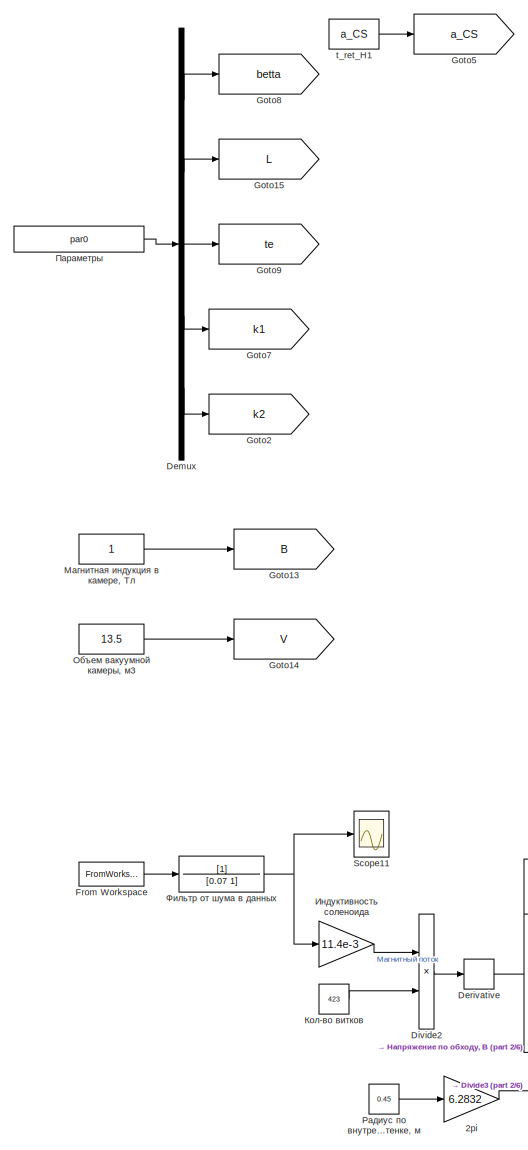
[diagram: root canvas - part 1/6, top left region]
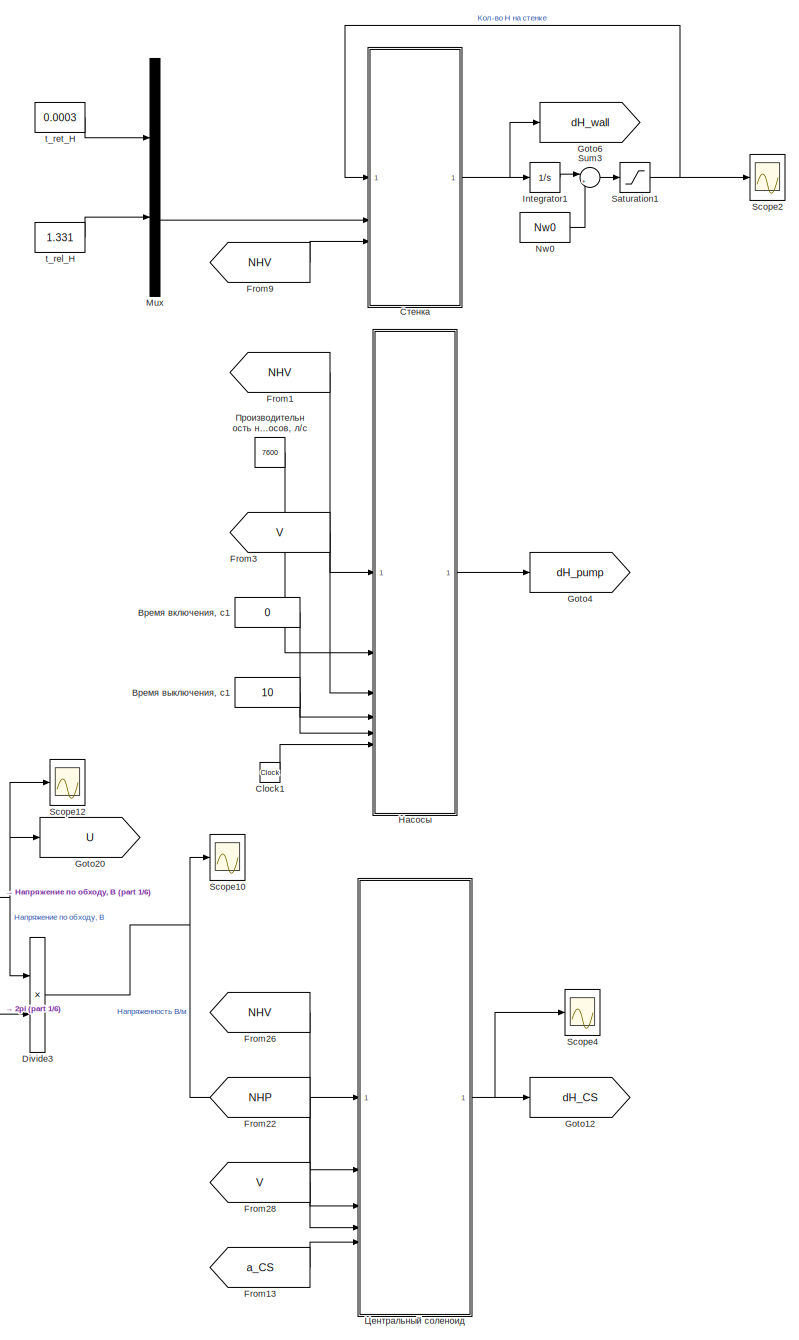
[diagram: root canvas - part 2/6, middle left region]
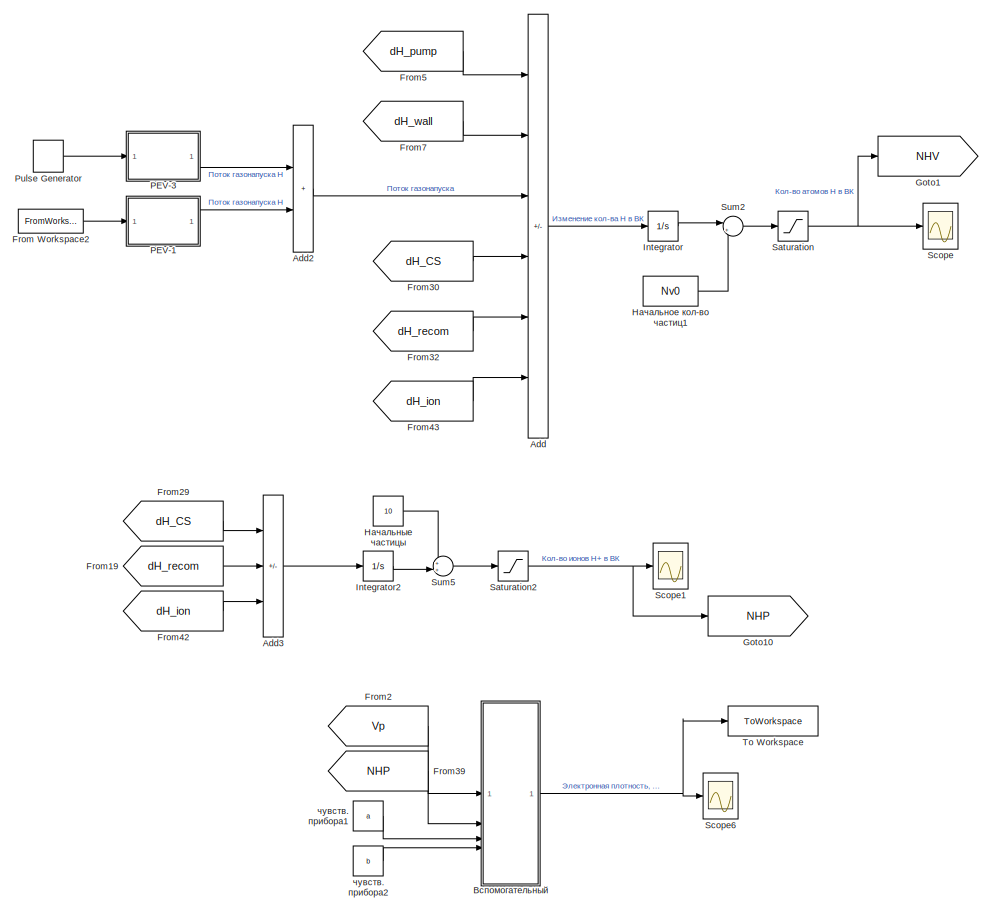
[diagram: root canvas - part 3/6, top right region]
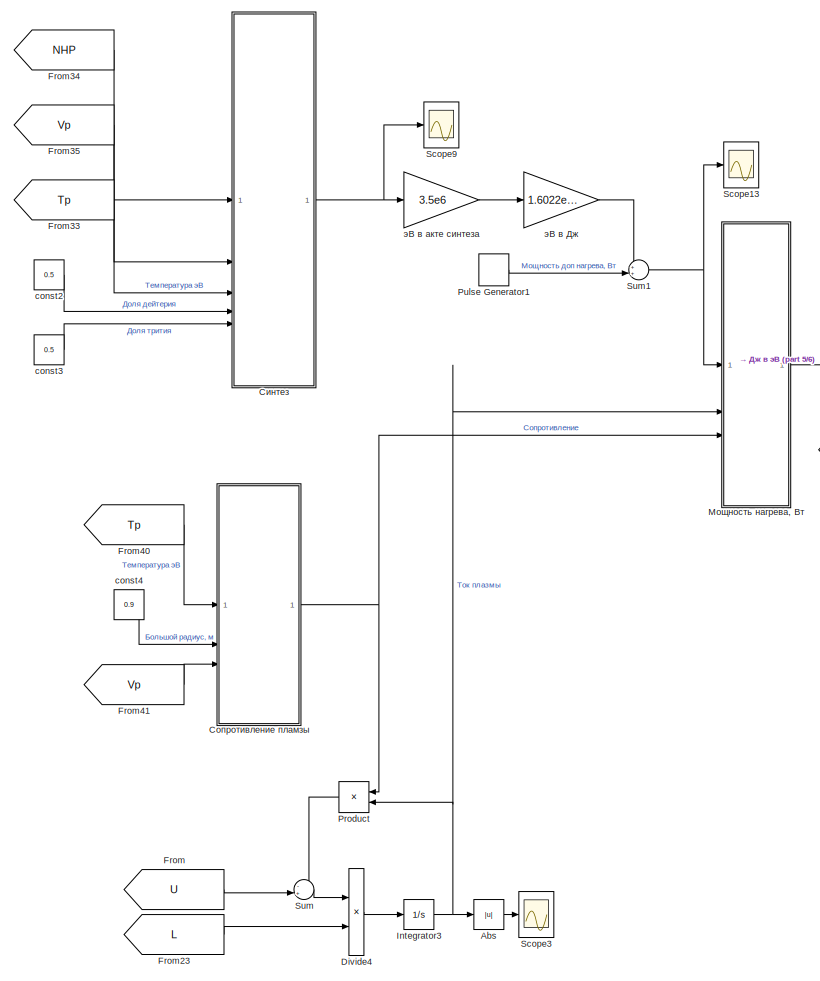
[diagram: root canvas - part 4/6, bottom center region]
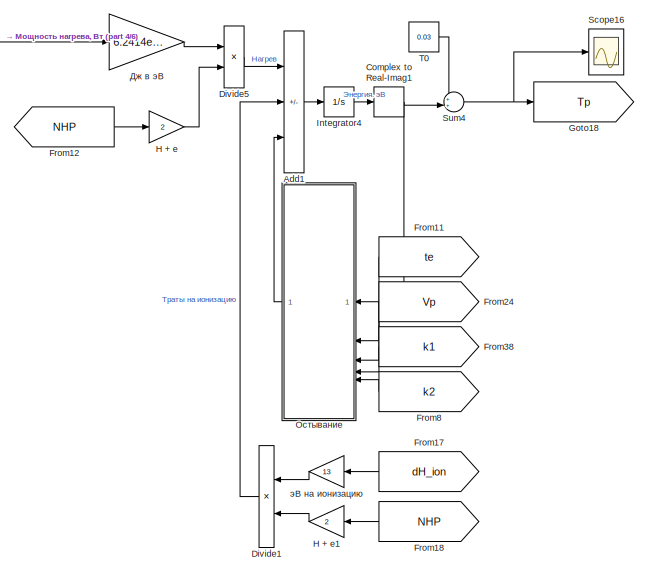
[diagram: root canvas - part 5/6, bottom right region]
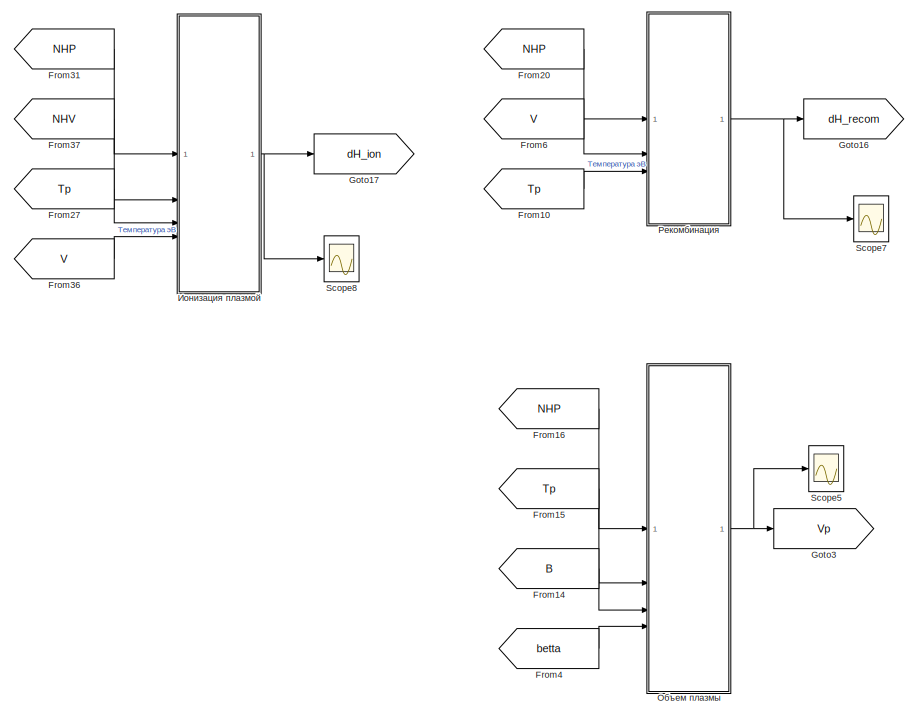
[diagram: root canvas - part 6/6, bottom left region]
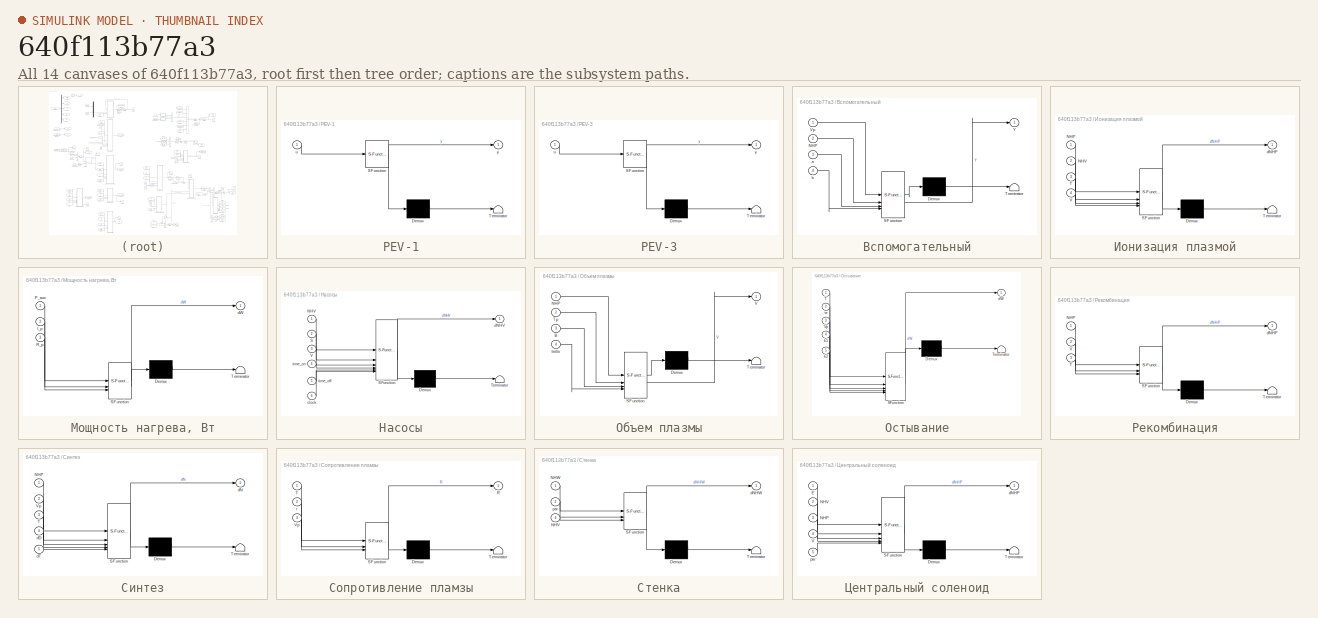
[diagram: thumbnail index - all 14 canvases of the model, root first then tree order]
MODEL slx_640f113b77a3
KIND model
CONFIG AbsTol = auto
CONFIG EnableMultiTasking = off
CONFIG FixedStep = 1e-4
CONFIG MaxStep = auto
CONFIG MinStep = auto
CONFIG RelTol = 1e-6
CONFIG SampleTimeConstraint = Unconstrained
CONFIG SolverName = daessc
CONFIG StartTime = 0.0
CONFIG StopTime = 6
WORKSPACE source: mxarray member
WORKSPACE N_p0 = 5
WORKSPACE N_v0 = 0
WORKSPACE N_w0 = 0
WORKSPACE t_ion = 0
WORKSPACE t_p = 12
WORKSPACE t_pump = 32
WORKSPACE t_release = 5
WORKSPACE t_retention = 2
BLOCK [Gain] 2pi
  Gain = 6.2832
BLOCK [Abs] Abs
  SaturateOnIntegerOverflow = off
BLOCK [Sum] Add
  IconShape = rectangular
  Inputs = --+-+-
BLOCK [Sum] Add1
  IconShape = rectangular
  Inputs = +--
BLOCK [Sum] Add2
  IconShape = rectangular
BLOCK [Sum] Add3
  IconShape = rectangular
  Inputs = +-+
BLOCK [Clock] Clock1
BLOCK [ComplexToRealImag] Complex to Real-Imag1
  Output = Real
BLOCK [Demux] Demux
  Outputs = 5
BLOCK [Derivative] Derivative
BLOCK [Product] Divide1
  Inputs = */
BLOCK [Product] Divide2
  Inputs = */
BLOCK [Product] Divide3
  Inputs = */
BLOCK [Product] Divide4
  Inputs = */
BLOCK [Product] Divide5
  Inputs = */
BLOCK [From] From
  GotoTag = U
BLOCK [FromWorkspace] From Workspace
  OutputAfterFinalValue = Holding final value
  VariableName = I_CS
BLOCK [FromWorkspace] From Workspace2
  OutputAfterFinalValue = Holding final value
  VariableName = gas
BLOCK [From] From1
  GotoTag = NHV
BLOCK [From] From10
  GotoTag = Tp
BLOCK [From] From11
  GotoTag = te
BLOCK [From] From12
  GotoTag = NHP
BLOCK [From] From13
  GotoTag = a_CS
BLOCK [From] From14
  GotoTag = B
BLOCK [From] From15
  GotoTag = Tp
BLOCK [From] From16
  GotoTag = NHP
BLOCK [From] From17
  GotoTag = dH_ion
BLOCK [From] From18
  GotoTag = NHP
BLOCK [From] From19
  GotoTag = dH_recom
BLOCK [From] From2
  GotoTag = Vp
BLOCK [From] From20
  GotoTag = NHP
BLOCK [From] From22
  GotoTag = NHP
BLOCK [From] From23
  GotoTag = L
BLOCK [From] From24
  GotoTag = Vp
BLOCK [From] From26
  GotoTag = NHV
BLOCK [From] From27
  GotoTag = Tp
BLOCK [From] From28
  GotoTag = V
BLOCK [From] From29
  GotoTag = dH_CS
BLOCK [From] From3
  GotoTag = V
BLOCK [From] From30
  GotoTag = dH_CS
BLOCK [From] From31
  GotoTag = NHP
BLOCK [From] From32
  GotoTag = dH_recom
BLOCK [From] From33
  GotoTag = Tp
BLOCK [From] From34
  GotoTag = NHP
BLOCK [From] From35
  GotoTag = Vp
BLOCK [From] From36
  GotoTag = V
BLOCK [From] From37
  GotoTag = NHV
BLOCK [From] From38
  GotoTag = k1
BLOCK [From] From39
  GotoTag = NHP
BLOCK [From] From4
  GotoTag = betta
BLOCK [From] From40
  GotoTag = Tp
BLOCK [From] From41
  GotoTag = Vp
BLOCK [From] From42
  GotoTag = dH_ion
BLOCK [From] From43
  GotoTag = dH_ion
BLOCK [From] From5
  GotoTag = dH_pump
BLOCK [From] From6
  GotoTag = V
BLOCK [From] From7
  GotoTag = dH_wall
BLOCK [From] From8
  GotoTag = k2
BLOCK [From] From9
  GotoTag = NHV
BLOCK [Goto] Goto1
  GotoTag = NHV
BLOCK [Goto] Goto10
  GotoTag = NHP
BLOCK [Goto] Goto12
  GotoTag = dH_CS
BLOCK [Goto] Goto13
  GotoTag = B
BLOCK [Goto] Goto14
  GotoTag = V
BLOCK [Goto] Goto15
  GotoTag = L
BLOCK [Goto] Goto16
  GotoTag = dH_recom
BLOCK [Goto] Goto17
  GotoTag = dH_ion
BLOCK [Goto] Goto18
  GotoTag = Tp
BLOCK [Goto] Goto2
  GotoTag = k2
BLOCK [Goto] Goto20
  GotoTag = U
BLOCK [Goto] Goto3
  GotoTag = Vp
BLOCK [Goto] Goto4
  GotoTag = dH_pump
BLOCK [Goto] Goto5
  GotoTag = a_CS
BLOCK [Goto] Goto6
  GotoTag = dH_wall
BLOCK [Goto] Goto7
  GotoTag = k1
BLOCK [Goto] Goto8
  GotoTag = betta
BLOCK [Goto] Goto9
  GotoTag = te
BLOCK [Gain] H + e
  Gain = 2
BLOCK [Gain] H + e1
  Gain = 2
BLOCK [Integrator] Integrator
  LowerSaturationLimit = 0
BLOCK [Integrator] Integrator1
  LowerSaturationLimit = 0
BLOCK [Integrator] Integrator2
  LimitOutput = on
  LowerSaturationLimit = 0
BLOCK [Integrator] Integrator3
BLOCK [Integrator] Integrator4
  LimitOutput = on
  LowerSaturationLimit = 0
BLOCK [Mux] Mux
  DisplayOption = bar
  Inputs = 2
BLOCK [Constant] Nw0
  Value = Nw0
BLOCK [SubSystem] PEV-1
  ErrorFcn = Stateflow.Translate.translate
  PermitHierarchicalResolution = ExplicitOnly
  SFBlockType = MATLAB Function
  TreatAsAtomicUnit = on
BLOCK [Demux] PEV-1/ Demux 
  Outputs = 1
BLOCK [S-Function] PEV-1/ SFunction 
  EnableBusSupport = on
  FunctionName = sf_sfun
  PortCounts = [1 2]
  SFcnIsStateOwnerBlock = off
  SFunctionDeploymentMode = off
  Tag = Stateflow S-Function 3
BLOCK [Terminator] PEV-1/ Terminator 
BLOCK [Inport] PEV-1/u
BLOCK [Outport] PEV-1/y
BLOCK [SubSystem] PEV-3
  ErrorFcn = Stateflow.Translate.translate
  PermitHierarchicalResolution = ExplicitOnly
  SFBlockType = MATLAB Function
  TreatAsAtomicUnit = on
BLOCK [Demux] PEV-3/ Demux 
  Outputs = 1
BLOCK [S-Function] PEV-3/ SFunction 
  EnableBusSupport = on
  FunctionName = sf_sfun
  PortCounts = [1 2]
  SFcnIsStateOwnerBlock = off
  SFunctionDeploymentMode = off
  Tag = Stateflow S-Function 4
BLOCK [Terminator] PEV-3/ Terminator 
BLOCK [Inport] PEV-3/u
BLOCK [Outport] PEV-3/y
BLOCK [Product] Product
BLOCK [DiscretePulseGenerator] Pulse Generator
  Amplitude = 35.8
  Period = 1
  PulseType = Time based
  PulseWidth = 50
BLOCK [DiscretePulseGenerator] Pulse Generator1
  Amplitude = 8e6
  Period = 100
  PhaseDelay = 2.25
  PulseType = Time based
  PulseWidth = 0.15
BLOCK [Saturate] Saturation
  LowerLimit = 0
  UpperLimit = 1e30
BLOCK [Saturate] Saturation1
  LowerLimit = 0
  UpperLimit = 1e30
BLOCK [Saturate] Saturation2
  LowerLimit = 0
  UpperLimit = 1e30
BLOCK [Scope] Scope
  Floating = off
  NumInputPorts = 1
  ScopeSpecificationString = Simulink.scopes.TimeScopeBlockCfg('CurrentConfiguration', extmgr.ConfigurationSet(extmgr.Configuration('Core','General UI',true,'FigureColor',[1 1 1]),extmgr.Configuration('Core','Source UI',true),extmgr.Configuration('Sources','WiredSimulink',true,'DataLoggingVariableName','ScopeData1'),extmgr.Configuration('Visuals','Time Domain',true,'SerializedDisplays',{struct('MinYLimReal','16621659392793669...<+1775ch>
BLOCK [Scope] Scope1
  Floating = off
  NumInputPorts = 1
  ScopeSpecificationString = Simulink.scopes.TimeScopeBlockCfg('CurrentConfiguration', extmgr.ConfigurationSet(extmgr.Configuration('Core','General UI',true,'FigureColor',[1 1 1]),extmgr.Configuration('Core','Source UI',true),extmgr.Configuration('Sources','WiredSimulink',true,'DataLoggingVariableName','ScopeData1'),extmgr.Configuration('Visuals','Time Domain',true,'SerializedDisplays',{struct('MinYLimReal','-2246492687127468...<+1772ch>
BLOCK [Scope] Scope10
  Floating = off
  NumInputPorts = 1
  ScopeSpecificationString = Simulink.scopes.TimeScopeBlockCfg('CurrentConfiguration', extmgr.ConfigurationSet(extmgr.Configuration('Core','General UI',true,'FigureColor',[1 1 1]),extmgr.Configuration('Core','Source UI',true),extmgr.Configuration('Sources','WiredSimulink',true,'DataLoggingVariableName','ScopeData1'),extmgr.Configuration('Visuals','Time Domain',true,'SerializedDisplays',{struct('MinYLimReal','-0.85762','MaxYLi...<+1622ch>
BLOCK [Scope] Scope11
  Floating = off
  NumInputPorts = 1
  ScopeSpecificationString = Simulink.scopes.TimeScopeBlockCfg('CurrentConfiguration', extmgr.ConfigurationSet(extmgr.Configuration('Core','General UI',true,'FigureColor',[1 1 1]),extmgr.Configuration('Core','Source UI',true),extmgr.Configuration('Sources','WiredSimulink',true,'DataLoggingVariableName','ScopeData2'),extmgr.Configuration('Visuals','Time Domain',true,'SerializedDisplays',{struct('MinYLimReal','-15687.03852','Ma...<+1658ch>
BLOCK [Scope] Scope12
  Floating = off
  NumInputPorts = 1
  ScopeSpecificationString = Simulink.scopes.TimeScopeBlockCfg('CurrentConfiguration', extmgr.ConfigurationSet(extmgr.Configuration('Core','General UI',true,'FigureColor',[1 1 1]),extmgr.Configuration('Core','Source UI',true),extmgr.Configuration('Sources','WiredSimulink',true,'DataLoggingVariableName','ScopeData1'),extmgr.Configuration('Visuals','Time Domain',true,'SerializedDisplays',{struct('MinYLimReal','-2.42488','MaxYLi...<+1628ch>
BLOCK [Scope] Scope13
  Floating = off
  NumInputPorts = 1
  ScopeSpecificationString = Simulink.scopes.TimeScopeBlockCfg('CurrentConfiguration', extmgr.ConfigurationSet(extmgr.Configuration('Core','General UI',true,'FigureColor',[1 1 1]),extmgr.Configuration('Core','Source UI',true),extmgr.Configuration('Sources','WiredSimulink',true,'DataLoggingVariableName','ScopeData1'),extmgr.Configuration('Visuals','Time Domain',true,'SerializedDisplays',{struct('MinYLimReal','-1000000.00001','...<+1655ch>
BLOCK [Scope] Scope16
  Floating = off
  NumInputPorts = 1
  ScopeSpecificationString = Simulink.scopes.TimeScopeBlockCfg('CurrentConfiguration', extmgr.ConfigurationSet(extmgr.Configuration('Core','General UI',true,'FigureColor',[1 1 1]),extmgr.Configuration('Core','Source UI',true),extmgr.Configuration('Sources','WiredSimulink',true,'DataLoggingVariableName','ScopeData2'),extmgr.Configuration('Visuals','Time Domain',true,'SerializedDisplays',{struct('MinYLimReal','-84523.44815','Ma...<+1670ch>
BLOCK [Scope] Scope2
  Floating = off
  NumInputPorts = 1
  ScopeSpecificationString = Simulink.scopes.TimeScopeBlockCfg('CurrentConfiguration', extmgr.ConfigurationSet(extmgr.Configuration('Core','General UI',true,'FigureColor',[1 1 1]),extmgr.Configuration('Core','Source UI',true),extmgr.Configuration('Sources','WiredSimulink',true,'DataLoggingVariableName','ScopeData1'),extmgr.Configuration('Visuals','Time Domain',true,'SerializedDisplays',{struct('MinYLimReal','75300933943947853...<+1797ch>
BLOCK [Scope] Scope3
  Floating = off
  NumInputPorts = 1
  ScopeSpecificationString = Simulink.scopes.TimeScopeBlockCfg('CurrentConfiguration', extmgr.ConfigurationSet(extmgr.Configuration('Core','General UI',true,'FigureColor',[1 1 1]),extmgr.Configuration('Core','Source UI',true),extmgr.Configuration('Sources','WiredSimulink',true,'DataLoggingVariableName','ScopeData1'),extmgr.Configuration('Visuals','Time Domain',true,'SerializedDisplays',{struct('MinYLimReal','-1587461524.26099...<+1682ch>
BLOCK [Scope] Scope4
  Floating = off
  NumInputPorts = 1
  ScopeSpecificationString = Simulink.scopes.TimeScopeBlockCfg('CurrentConfiguration', extmgr.ConfigurationSet(extmgr.Configuration('Core','General UI',true,'FigureColor',[1 1 1]),extmgr.Configuration('Core','Source UI',true),extmgr.Configuration('Sources','WiredSimulink',true,'DataLoggingVariableName','ScopeData1'),extmgr.Configuration('Visuals','Time Domain',true,'SerializedDisplays',{struct('MinYLimReal','-2168739559393113...<+1814ch>
BLOCK [Scope] Scope5
  Floating = off
  NumInputPorts = 1
  ScopeSpecificationString = Simulink.scopes.TimeScopeBlockCfg('CurrentConfiguration', extmgr.ConfigurationSet(extmgr.Configuration('Core','General UI',true,'FigureColor',[1 1 1]),extmgr.Configuration('Core','Source UI',true),extmgr.Configuration('Sources','WiredSimulink',true,'DataLoggingVariableName','ScopeData2'),extmgr.Configuration('Visuals','Time Domain',true,'SerializedDisplays',{struct('MinYLimReal','-1.19552','MaxYLi...<+1621ch>
BLOCK [Scope] Scope6
  Floating = off
  NumInputPorts = 1
  ScopeSpecificationString = Simulink.scopes.TimeScopeBlockCfg('CurrentConfiguration', extmgr.ConfigurationSet(extmgr.Configuration('Core','General UI',true,'FigureColor',[1 1 1]),extmgr.Configuration('Core','Source UI',true),extmgr.Configuration('Sources','WiredSimulink',true,'DataLoggingVariableName','ScopeData2'),extmgr.Configuration('Visuals','Time Domain',true,'SerializedDisplays',{struct('MinYLimReal','-1884733013792859...<+1777ch>
BLOCK [Scope] Scope7
  Floating = off
  NumInputPorts = 1
  ScopeSpecificationString = Simulink.scopes.TimeScopeBlockCfg('CurrentConfiguration', extmgr.ConfigurationSet(extmgr.Configuration('Core','General UI',true,'FigureColor',[1 1 1]),extmgr.Configuration('Core','Source UI',true),extmgr.Configuration('Sources','WiredSimulink',true,'DataLoggingVariableName','ScopeData1'),extmgr.Configuration('Visuals','Time Domain',true,'SerializedDisplays',{struct('MinYLimReal','-1286645898170381...<+1786ch>
BLOCK [Scope] Scope8
  Floating = off
  NumInputPorts = 1
  ScopeSpecificationString = Simulink.scopes.TimeScopeBlockCfg('CurrentConfiguration', extmgr.ConfigurationSet(extmgr.Configuration('Core','General UI',true,'FigureColor',[1 1 1]),extmgr.Configuration('Core','Source UI',true),extmgr.Configuration('Sources','WiredSimulink',true,'DataLoggingVariableName','ScopeData2'),extmgr.Configuration('Visuals','Time Domain',true,'SerializedDisplays',{struct('MinYLimReal','-2886698763500426...<+1803ch>
BLOCK [Scope] Scope9
  Floating = off
  NumInputPorts = 1
  ScopeSpecificationString = Simulink.scopes.TimeScopeBlockCfg('CurrentConfiguration', extmgr.ConfigurationSet(extmgr.Configuration('Core','General UI',true,'FigureColor',[1 1 1]),extmgr.Configuration('Core','Source UI',true),extmgr.Configuration('Sources','WiredSimulink',true,'DataLoggingVariableName','ScopeData3'),extmgr.Configuration('Visuals','Time Domain',true,'SerializedDisplays',{struct('MinYLimReal','-0.00000009','Max...<+1635ch>
BLOCK [Sum] Sum
  Inputs = -+|
BLOCK [Sum] Sum1
  Inputs = ++|
BLOCK [Sum] Sum2
  Inputs = |++
BLOCK [Sum] Sum3
  Inputs = |++
BLOCK [Sum] Sum4
  Inputs = ++|
BLOCK [Sum] Sum5
  Inputs = ++|
BLOCK [Constant] T0
  Value = 0.03
BLOCK [ToWorkspace] To Workspace
  FixptAsFi = on
  MaxDataPoints = inf
  SampleTime = 0.001
  SaveFormat = Timeseries
  VariableName = nP_model
BLOCK [Constant] const2
  Value = 0.5
BLOCK [Constant] const3
  Value = 0.5
BLOCK [Constant] const4
  Value = 0.9
BLOCK [Constant] t_rel_H
  Value = 1.331
BLOCK [Constant] t_ret_H
  Value = 0.0003
BLOCK [Constant] t_ret_H1
  Value = a_CS
BLOCK [Constant] Время включения, с1
  Value = 0
BLOCK [Constant] Время выключения, с1
  Value = 10
BLOCK [SubSystem] Вспомогательный
  ErrorFcn = Stateflow.Translate.translate
  PermitHierarchicalResolution = ExplicitOnly
  SFBlockType = MATLAB Function
  TreatAsAtomicUnit = on
BLOCK [Demux] Вспомогательный/ Demux 
  Outputs = 1
BLOCK [S-Function] Вспомогательный/ SFunction 
  EnableBusSupport = on
  FunctionName = sf_sfun
  PortCounts = [4 2]
  SFcnIsStateOwnerBlock = off
  SFunctionDeploymentMode = off
  Tag = Stateflow S-Function 11
BLOCK [Terminator] Вспомогательный/ Terminator 
BLOCK [Inport] Вспомогательный/NHP
  Port = 2
BLOCK [Inport] Вспомогательный/Vp
BLOCK [Outport] Вспомогательный/Y
BLOCK [Inport] Вспомогательный/a
  Port = 3
BLOCK [Inport] Вспомогательный/b
  Port = 4
BLOCK [Gain] Дж в эВ
  Gain = 6.2414e18
BLOCK [Gain] Индуктивность соленоида
  Gain = 11.4e-3
BLOCK [SubSystem] Ионизация плазмой
  ErrorFcn = Stateflow.Translate.translate
  PermitHierarchicalResolution = ExplicitOnly
  SFBlockType = MATLAB Function
  TreatAsAtomicUnit = on
BLOCK [Demux] Ионизация плазмой/ Demux 
  Outputs = 1
BLOCK [S-Function] Ионизация плазмой/ SFunction 
  EnableBusSupport = on
  FunctionName = sf_sfun
  PortCounts = [4 2]
  SFcnIsStateOwnerBlock = off
  SFunctionDeploymentMode = off
  Tag = Stateflow S-Function 13
BLOCK [Terminator] Ионизация плазмой/ Terminator 
BLOCK [Inport] Ионизация плазмой/NHP
BLOCK [Inport] Ионизация плазмой/NHV
  Port = 2
BLOCK [Inport] Ионизация плазмой/T
  Port = 3
BLOCK [Inport] Ионизация плазмой/V
  Port = 4
BLOCK [Outport] Ионизация плазмой/dNHP
BLOCK [Constant] Кол-во витков
  Value = 423
BLOCK [Constant] Магнитная индукция в камере, Тл
BLOCK [SubSystem] Мощность нагрева, Вт
  ErrorFcn = Stateflow.Translate.translate
  PermitHierarchicalResolution = ExplicitOnly
  SFBlockType = MATLAB Function
  TreatAsAtomicUnit = on
BLOCK [Demux] Мощность нагрева, Вт/ Demux 
  Outputs = 1
BLOCK [S-Function] Мощность нагрева, Вт/ SFunction 
  EnableBusSupport = on
  FunctionName = sf_sfun
  PortCounts = [3 2]
  SFcnIsStateOwnerBlock = off
  SFunctionDeploymentMode = off
  Tag = Stateflow S-Function 10
BLOCK [Terminator] Мощность нагрева, Вт/ Terminator 
BLOCK [Inport] Мощность нагрева, Вт/I_p
  Port = 2
BLOCK [Inport] Мощность нагрева, Вт/P_aux
BLOCK [Inport] Мощность нагрева, Вт/R_p
  Port = 3
BLOCK [Outport] Мощность нагрева, Вт/dW
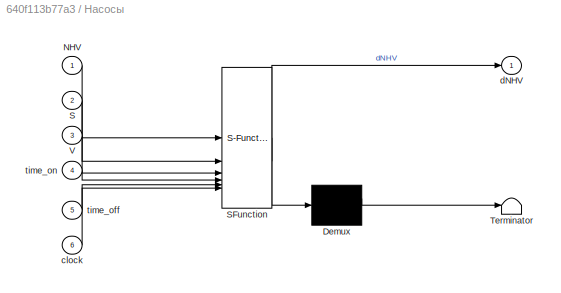
BLOCK [SubSystem] Насосы
  ErrorFcn = Stateflow.Translate.translate
  PermitHierarchicalResolution = ExplicitOnly
  SFBlockType = MATLAB Function
  TreatAsAtomicUnit = on
BLOCK [Demux] Насосы/ Demux 
  Outputs = 1
BLOCK [S-Function] Насосы/ SFunction 
  EnableBusSupport = on
  FunctionName = sf_sfun
  PortCounts = [6 2]
  SFcnIsStateOwnerBlock = off
  SFunctionDeploymentMode = off
  Tag = Stateflow S-Function 2
BLOCK [Terminator] Насосы/ Terminator 
BLOCK [Inport] Насосы/NHV
BLOCK [Inport] Насосы/S
  Port = 2
BLOCK [Inport] Насосы/V
  Port = 3
BLOCK [Inport] Насосы/clock
  Port = 6
BLOCK [Outport] Насосы/dNHV
BLOCK [Inport] Насосы/time_off
  Port = 5
BLOCK [Inport] Насосы/time_on
  Port = 4
BLOCK [Constant] Начальное кол-во частиц1
  Value = Nv0
BLOCK [Constant] Начальные частицы
  Value = 10
BLOCK [Constant] Объем вакуумной камеры, м3 
  Value = 13.5
BLOCK [SubSystem] Объем плазмы
  ErrorFcn = Stateflow.Translate.translate
  PermitHierarchicalResolution = ExplicitOnly
  SFBlockType = MATLAB Function
  TreatAsAtomicUnit = on
BLOCK [Demux] Объем плазмы/ Demux 
  Outputs = 1
BLOCK [S-Function] Объем плазмы/ SFunction 
  EnableBusSupport = on
  FunctionName = sf_sfun
  PortCounts = [4 2]
  SFcnIsStateOwnerBlock = off
  SFunctionDeploymentMode = off
  Tag = Stateflow S-Function 1
BLOCK [Terminator] Объем плазмы/ Terminator 
BLOCK [Inport] Объем плазмы/B
  Port = 3
BLOCK [Inport] Объем плазмы/NHP
BLOCK [Inport] Объем плазмы/Tp
  Port = 2
BLOCK [Outport] Объем плазмы/V
BLOCK [Inport] Объем плазмы/betta
  Port = 4
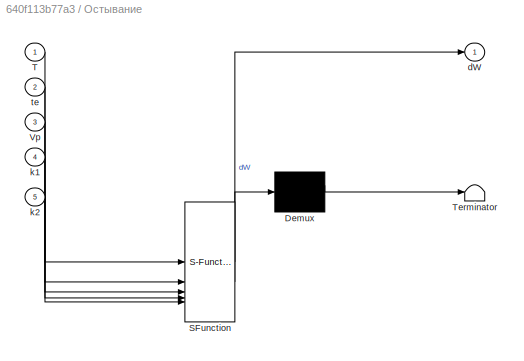
BLOCK [SubSystem] Остывание
  ErrorFcn = Stateflow.Translate.translate
  PermitHierarchicalResolution = ExplicitOnly
  SFBlockType = MATLAB Function
  TreatAsAtomicUnit = on
BLOCK [Demux] Остывание/ Demux 
  Outputs = 1
BLOCK [S-Function] Остывание/ SFunction 
  EnableBusSupport = on
  FunctionName = sf_sfun
  PortCounts = [5 2]
  SFcnIsStateOwnerBlock = off
  SFunctionDeploymentMode = off
  Tag = Stateflow S-Function 12
BLOCK [Terminator] Остывание/ Terminator 
BLOCK [Inport] Остывание/T
BLOCK [Inport] Остывание/Vp
  Port = 3
BLOCK [Outport] Остывание/dW
BLOCK [Inport] Остывание/k1
  Port = 4
BLOCK [Inport] Остывание/k2
  Port = 5
BLOCK [Inport] Остывание/te
  Port = 2
BLOCK [Constant] Параметры
  Value = par0
BLOCK [Constant] Производительность насосов, л//с
  Value = 7600
BLOCK [Constant] Радиус по внутренней стенке, м
  Value = 0.45
BLOCK [SubSystem] Рекомбинация
  ErrorFcn = Stateflow.Translate.translate
  PermitHierarchicalResolution = ExplicitOnly
  SFBlockType = MATLAB Function
  TreatAsAtomicUnit = on
BLOCK [Demux] Рекомбинация/ Demux 
  Outputs = 1
BLOCK [S-Function] Рекомбинация/ SFunction 
  EnableBusSupport = on
  FunctionName = sf_sfun
  PortCounts = [3 2]
  SFcnIsStateOwnerBlock = off
  SFunctionDeploymentMode = off
  Tag = Stateflow S-Function 6
BLOCK [Terminator] Рекомбинация/ Terminator 
BLOCK [Inport] Рекомбинация/NHP
BLOCK [Inport] Рекомбинация/T
  Port = 3
BLOCK [Inport] Рекомбинация/V
  Port = 2
BLOCK [Outport] Рекомбинация/dNHP
BLOCK [SubSystem] Синтез
  ErrorFcn = Stateflow.Translate.translate
  PermitHierarchicalResolution = ExplicitOnly
  SFBlockType = MATLAB Function
  TreatAsAtomicUnit = on
BLOCK [Demux] Синтез/ Demux 
  Outputs = 1
BLOCK [S-Function] Синтез/ SFunction 
  EnableBusSupport = on
  FunctionName = sf_sfun
  PortCounts = [5 2]
  SFcnIsStateOwnerBlock = off
  SFunctionDeploymentMode = off
  Tag = Stateflow S-Function 8
BLOCK [Terminator] Синтез/ Terminator 
BLOCK [Inport] Синтез/NHP
BLOCK [Inport] Синтез/T
  Port = 3
BLOCK [Inport] Синтез/Vp
  Port = 2
BLOCK [Inport] Синтез/dD
  Port = 4
BLOCK [Outport] Синтез/dN
BLOCK [Inport] Синтез/dT
  Port = 5
BLOCK [SubSystem] Сопротивление пламзы
  ErrorFcn = Stateflow.Translate.translate
  PermitHierarchicalResolution = ExplicitOnly
  SFBlockType = MATLAB Function
  TreatAsAtomicUnit = on
BLOCK [Demux] Сопротивление пламзы/ Demux 
  Outputs = 1
BLOCK [S-Function] Сопротивление пламзы/ SFunction 
  EnableBusSupport = on
  FunctionName = sf_sfun
  PortCounts = [3 2]
  SFcnIsStateOwnerBlock = off
  SFunctionDeploymentMode = off
  Tag = Stateflow S-Function 9
BLOCK [Terminator] Сопротивление пламзы/ Terminator 
BLOCK [Outport] Сопротивление пламзы/R
BLOCK [Inport] Сопротивление пламзы/T
BLOCK [Inport] Сопротивление пламзы/Vp
  Port = 3
BLOCK [Inport] Сопротивление пламзы/r
  Port = 2
BLOCK [SubSystem] Стенка
  ErrorFcn = Stateflow.Translate.translate
  PermitHierarchicalResolution = ExplicitOnly
  SFBlockType = MATLAB Function
  TreatAsAtomicUnit = on
BLOCK [Demux] Стенка/ Demux 
  Outputs = 1
BLOCK [S-Function] Стенка/ SFunction 
  EnableBusSupport = on
  FunctionName = sf_sfun
  PortCounts = [3 2]
  SFcnIsStateOwnerBlock = off
  SFunctionDeploymentMode = off
  Tag = Stateflow S-Function 5
BLOCK [Terminator] Стенка/ Terminator 
BLOCK [Inport] Стенка/NHV
  Port = 3
BLOCK [Inport] Стенка/NHW
BLOCK [Outport] Стенка/dNHW
BLOCK [Inport] Стенка/par
  Port = 2
BLOCK [TransferFcn] Фильтр от шума в данных
  Denominator = [0.07 1]
BLOCK [SubSystem] Центральный соленоид
  ErrorFcn = Stateflow.Translate.translate
  PermitHierarchicalResolution = ExplicitOnly
  SFBlockType = MATLAB Function
  TreatAsAtomicUnit = on
BLOCK [Demux] Центральный соленоид/ Demux 
  Outputs = 1
BLOCK [S-Function] Центральный соленоид/ SFunction 
  EnableBusSupport = on
  FunctionName = sf_sfun
  PortCounts = [5 2]
  SFcnIsStateOwnerBlock = off
  SFunctionDeploymentMode = off
  Tag = Stateflow S-Function 7
BLOCK [Terminator] Центральный соленоид/ Terminator 
BLOCK [Inport] Центральный соленоид/E
BLOCK [Inport] Центральный соленоид/NHP
  Port = 3
BLOCK [Inport] Центральный соленоид/NHV
  Port = 2
BLOCK [Inport] Центральный соленоид/V
  Port = 4
BLOCK [Outport] Центральный соленоид/dNHP
BLOCK [Inport] Центральный соленоид/par
  Port = 5
BLOCK [Constant] чувств. прибора1
  Value = a
BLOCK [Constant] чувств. прибора2
  Value = b
BLOCK [Gain] эВ в Дж
  Gain = 1.6022e-19
BLOCK [Gain] эВ в акте синтеза
  Gain = 3.5e6
BLOCK [Gain] эВ на ионизацию
  Gain = 13
LINE 2pi:1 -> Divide3:2
LINE Abs:1 -> Scope3:1
LINE Add1:1 -> Integrator4:1
LINE Add2:1 -> Add:3
LINE Add3:1 -> Integrator2:1
LINE Add:1 -> Integrator:1
LINE Clock1:1 -> Насосы:6
NET Complex to Real-Imag1:1 -> Sum4:2, Остывание:1
LINE Demux:1 -> Goto8:1
LINE Demux:2 -> Goto15:1
LINE Demux:3 -> Goto9:1
LINE Demux:4 -> Goto7:1
LINE Demux:5 -> Goto2:1
NET Derivative:1 -> Divide3:1, Goto20:1, Scope12:1
LINE Divide1:1 -> Add1:2
LINE Divide2:1 -> Derivative:1
NET Divide3:1 -> Scope10:1, Центральный соленоид:1
LINE Divide4:1 -> Integrator3:1
LINE Divide5:1 -> Add1:1
LINE From Workspace2:1 -> PEV-1:1
LINE From Workspace:1 -> Фильтр от шума в данных:1
LINE From10:1 -> Рекомбинация:3
LINE From11:1 -> Остывание:2
LINE From12:1 -> H + e:1
LINE From13:1 -> Центральный соленоид:5
LINE From14:1 -> Объем плазмы:3
LINE From15:1 -> Объем плазмы:2
LINE From16:1 -> Объем плазмы:1
LINE From17:1 -> эВ на ионизацию:1
LINE From18:1 -> H + e1:1
LINE From19:1 -> Add3:2
LINE From1:1 -> Насосы:1
LINE From20:1 -> Рекомбинация:1
LINE From22:1 -> Центральный соленоид:3
LINE From23:1 -> Divide4:2
LINE From24:1 -> Остывание:3
LINE From26:1 -> Центральный соленоид:2
LINE From27:1 -> Ионизация плазмой:3
LINE From28:1 -> Центральный соленоид:4
LINE From29:1 -> Add3:1
LINE From2:1 -> Вспомогательный:1
LINE From30:1 -> Add:4
LINE From31:1 -> Ионизация плазмой:1
LINE From32:1 -> Add:5
LINE From33:1 -> Синтез:3
LINE From34:1 -> Синтез:1
LINE From35:1 -> Синтез:2
LINE From36:1 -> Ионизация плазмой:4
LINE From37:1 -> Ионизация плазмой:2
LINE From38:1 -> Остывание:4
LINE From39:1 -> Вспомогательный:2
LINE From3:1 -> Насосы:3
LINE From40:1 -> Сопротивление пламзы:1
LINE From41:1 -> Сопротивление пламзы:3
LINE From42:1 -> Add3:3
LINE From43:1 -> Add:6
LINE From4:1 -> Объем плазмы:4
LINE From5:1 -> Add:1
LINE From6:1 -> Рекомбинация:2
LINE From7:1 -> Add:2
LINE From8:1 -> Остывание:5
LINE From9:1 -> Стенка:3
LINE From:1 -> Sum:2
LINE H + e1:1 -> Divide1:2
LINE H + e:1 -> Divide5:2
LINE Integrator1:1 -> Sum3:1
LINE Integrator2:1 -> Sum5:2
NET Integrator3:1 -> Abs:1, Product:2, Мощность нагрева, Вт:2
LINE Integrator4:1 -> Complex to Real-Imag1:1
LINE Integrator:1 -> Sum2:1
LINE Mux:1 -> Стенка:2
LINE Nw0:1 -> Sum3:2
LINE PEV-1:1 -> Add2:2
LINE PEV-3:1 -> Add2:1
LINE Product:1 -> Sum:1
LINE Pulse Generator1:1 -> Sum1:2
LINE Pulse Generator:1 -> PEV-3:1
NET Saturation1:1 -> Scope2:1, Стенка:1
NET Saturation2:1 -> Goto10:1, Scope1:1
NET Saturation:1 -> Goto1:1, Scope:1
NET Sum1:1 -> Scope13:1, Мощность нагрева, Вт:1
LINE Sum2:1 -> Saturation:1
LINE Sum3:1 -> Saturation1:1
NET Sum4:1 -> Goto18:1, Scope16:1
LINE Sum5:1 -> Saturation2:1
LINE Sum:1 -> Divide4:1
LINE T0:1 -> Sum4:1
LINE const2:1 -> Синтез:4
LINE const3:1 -> Синтез:5
LINE const4:1 -> Сопротивление пламзы:2
LINE t_rel_H:1 -> Mux:2
LINE t_ret_H1:1 -> Goto5:1
LINE t_ret_H:1 -> Mux:1
LINE Время включения, с1:1 -> Насосы:4
LINE Время выключения, с1:1 -> Насосы:5
NET Вспомогательный:1 -> Scope6:1, To Workspace:1
LINE Дж в эВ:1 -> Divide5:1
LINE Индуктивность соленоида:1 -> Divide2:1
NET Ионизация плазмой:1 -> Goto17:1, Scope8:1
LINE Кол-во витков:1 -> Divide2:2
LINE Магнитная индукция в камере, Тл:1 -> Goto13:1
LINE Мощность нагрева, Вт:1 -> Дж в эВ:1
LINE Насосы:1 -> Goto4:1
LINE Начальное кол-во частиц1:1 -> Sum2:2
LINE Начальные частицы:1 -> Sum5:1
LINE Объем вакуумной камеры, м3 :1 -> Goto14:1
NET Объем плазмы:1 -> Goto3:1, Scope5:1
LINE Остывание:1 -> Add1:3
LINE Параметры:1 -> Demux:1
LINE Производительность насосов, л//с:1 -> Насосы:2
LINE Радиус по внутренней стенке, м:1 -> 2pi:1
NET Рекомбинация:1 -> Goto16:1, Scope7:1
NET Синтез:1 -> Scope9:1, эВ в акте синтеза:1
NET Сопротивление пламзы:1 -> Product:1, Мощность нагрева, Вт:3
NET Стенка:1 -> Goto6:1, Integrator1:1
NET Фильтр от шума в данных:1 -> Scope11:1, Индуктивность соленоида:1
NET Центральный соленоид:1 -> Goto12:1, Scope4:1
LINE чувств. прибора1:1 -> Вспомогательный:3
LINE чувств. прибора2:1 -> Вспомогательный:4
LINE эВ в Дж:1 -> Sum1:1
LINE эВ в акте синтеза:1 -> эВ в Дж:1
LINE эВ на ионизацию:1 -> Divide1:1
note: NET lines group one-source signal fan-out (src -> all destinations, sorted); 1:1 wires keep LINE
CHART Стенка states=1 transitions=1
  STATE_LABEL 'eML_blk_kernel()'
  STATE_LABEL 'SCRIPT:\nfunction dNHW= wall(NHW, par, NHV)\n\n%% Константы\nt_retention_H = par(1); %постоянная времени поглощения H\nt_release_H = par(2); %постоянная времени выхода H\n\n%%\ndNHW = NHV / t_retention_H - NHW / t_release_H;\n\nend'
CHART Рекомбинация states=1 transitions=1
  STATE_LABEL 'eML_blk_kernel()'
  STATE_LABEL 'SCRIPT:\nfunction dNHP = recom(NHP, V, T)\n\n%Скорость рекомбинации\nqv = 10^(-0.07*log10(T)^2 - 0.85*log10(T) - 12.3); %скорость рекомбинации см3/с\nif qv<0\n    qv = 0;\nelse\n    qv = qv * 1e-6; %скорость рекомбинации м3/с\nend\n\ndNHP = qv / V * NHP^2;\n\nend'
CHART Центральный соленоид states=1 transitions=1
  STATE_LABEL 'eML_blk_kernel()'
  STATE_LABEL 'SCRIPT:\nfunction dNHP = CS(E, NHV, NHP, V, par)\n\n    %Константы и параметры\n    a_CS = par(1);\n    e = 1.6022e-19; %заряд электрона, Кл\n    m = 9.1094e-31; %масса электрона, кг\n  \n    %Расчет\n    E = abs(E);\n    n = (NHV + NHP) / V; %концентрация ядер м-3\n    l = a_CS / n; %длина свободного пробега электрона, м\n    W1 = E * l; %энергия, которую преобрел электрон за длину свободного пробега, эВ\n   ...<+533ch>'
CHART Синтез states=1 transitions=1
  STATE_LABEL 'eML_blk_kernel()'
  STATE_LABEL 'SCRIPT:\nfunction dN  = synt(NHP, Vp, T, dD, dT)\n\n%Скорость синтеза\nqv = 10^(-1.3*log10(T/1000)^2 + 5.5*log10(T/1000) - 26.5); %скорость синтеза м3/с\n\ndN = qv * (NHP * dD / Vp) * (NHP * dT / Vp) * Vp;\n\nend'
CHART Сопротивление пламзы states=1 transitions=1
  STATE_LABEL 'eML_blk_kernel()'
  STATE_LABEL 'SCRIPT:\nfunction R = current(T, r, Vp)\n\n%Расчет\nT = T / 1000; %температура кэВ\np = 2.4e-2/(T^(3/2)); %удельное сопротивление плазмы, мкОм мм2 м-1\np = p * 1e-6 / (1000 * 1000); %удельное сопротивление плазмы, Ом м2 м-1\n\nl = 2 * pi * r; %длина окружности по большому радиусу, м\nR = p * l * l / Vp; %сопротивление плазменного шнура, Ом\n\nend'
CHART Мощность нагрева, Вт states=1 transitions=1
  STATE_LABEL 'eML_blk_kernel()'
  STATE_LABEL 'SCRIPT:\nfunction dW  = energy(P_aux, I_p, R_p)\n\n%Расчет\nP_current = R_p * I_p^2; %мощность омического нагрева, Вт\ndW = P_current + P_aux;\n\nend'
CHART Вспомогательный states=1 transitions=1
  STATE_LABEL 'eML_blk_kernel()'
  STATE_LABEL 'SCRIPT:\nfunction Y  = A(Vp, NHP, a, b)\n\nq = 1 / (1 + exp(a * b - b * Vp)); %чувствительность прибора\n\nY = q * NHP / Vp;\n\nend'
CHART Остывание states=1 transitions=1
  STATE_LABEL 'eML_blk_kernel()'
  STATE_LABEL 'SCRIPT:\nfunction dW  = energy(T, te, Vp, k1, k2)\n\nif T<0\n    T = 0;\nend\nT = T + 1e-6;\n\n%Расчет\nPe = T / te;\nPrad = T*(k1*sqrt(Vp) + k2/Vp); %потери за счет теплообмена\ndW = Pe + Prad;\n\nend'
CHART Ионизация плазмой states=1 transitions=1
  STATE_LABEL 'eML_blk_kernel()'
  STATE_LABEL 'SCRIPT:\nfunction dNHP = ion(NHP, NHV, T, V)\n\n%Константы и параметры\nmp = 1.6726e-27; %масса протона, кг\ne = 1.6021e-19; %заряд электрона\n\n%Расчет сечения ионизации\nq = 0.1257 * (T/1000)^2 + 0.8267 * (T/1000) - 0.8389; %сечение ионизации, 1e-18 см2\n\nif q<0\n    q = 0;\nelse\n    q = q * 1e-22; %сечение ионизации, м2\nend\n\n%скорость протонов (атомы относительно них неподвижны)\nv = sqrt(2 * (T * e) / mp)...<+104ch>'
CHART Объем плазмы states=1 transitions=1
  STATE_LABEL 'eML_blk_kernel()'
  STATE_LABEL 'SCRIPT:\nfunction V = volume(NHP, Tp, B, betta)\n\n%Расчет\nP_field = 0.4 * B^2 * 1e6; %давление магнитного поля, Па\n\nV = (3.2e-19) * NHP * Tp / betta / P_field;\n\nend'
CHART Насосы states=1 transitions=1
  STATE_LABEL 'eML_blk_kernel()'
  STATE_LABEL 'SCRIPT:\nfunction dNHV = pump(NHV, S, V, time_on, time_off, clock)\n\nt_pump = V * 1000 / S;\n\nif clock > time_on && clock < time_off\n    dNHV = NHV / t_pump;\nelse\n    dNHV = 0;\nend\n\nend'
CHART PEV-1 states=1 transitions=1
  STATE_LABEL 'eML_blk_kernel()'
  STATE_LABEL 'SCRIPT:\nfunction y = PEV(u)\n    y_vals = [0, 18, 28, 42, 62, 80, 100, 123, 154, 180, 200, 232, 259, 280, 300, 323, 346, 360, 400, 433, 450, 478, 500, 538, 552, 580, 600, 635, 668, 700, 729, 750, 770, 800, 839, 870, 900, 930, 958, 988, 1000, 1050, 1100];\n    x_vals = [20, 32, 35, 40, 44.8, 48.2, 50, 52.2, 54.8, 56.5, 57.5, 60, 61.7, 62.8, 63.9, 65, 66.1, 67.5, 70, 71, 72, 74, 75, 76.5, 78, 80, 82, ...<+238ch>'
CHART PEV-3 states=1 transitions=1
  STATE_LABEL 'eML_blk_kernel()'
  STATE_LABEL 'SCRIPT:\nfunction y = PEV(u)\n    y_vals = [0, 18, 28, 42, 62, 80, 100, 123, 154, 180, 200, 232, 259, 280, 300, 323, 346, 360, 400, 433, 450, 478, 500, 538, 552, 580, 600, 635, 668, 700, 729, 750, 770, 800, 839, 870, 900, 930, 958, 988, 1000, 1050, 1100];\n    x_vals = [20, 32, 35, 40, 44.8, 48.2, 50, 52.2, 54.8, 56.5, 57.5, 60, 61.7, 62.8, 63.9, 65, 66.1, 67.5, 70, 71, 72, 74, 75, 76.5, 78, 80, 82, ...<+238ch>'
CHART  states=0 transitions=0
CHART  states=0 transitions=0
CHART  states=0 transitions=0
CHART  states=0 transitions=0
CHART  states=0 transitions=0
CHART  states=0 transitions=0
CHART  states=0 transitions=0
CHART  states=0 transitions=0
CHART  states=0 transitions=0
CHART  states=0 transitions=0
CHART  states=0 transitions=0
CHART  states=0 transitions=0
CHART  states=0 transitions=0
